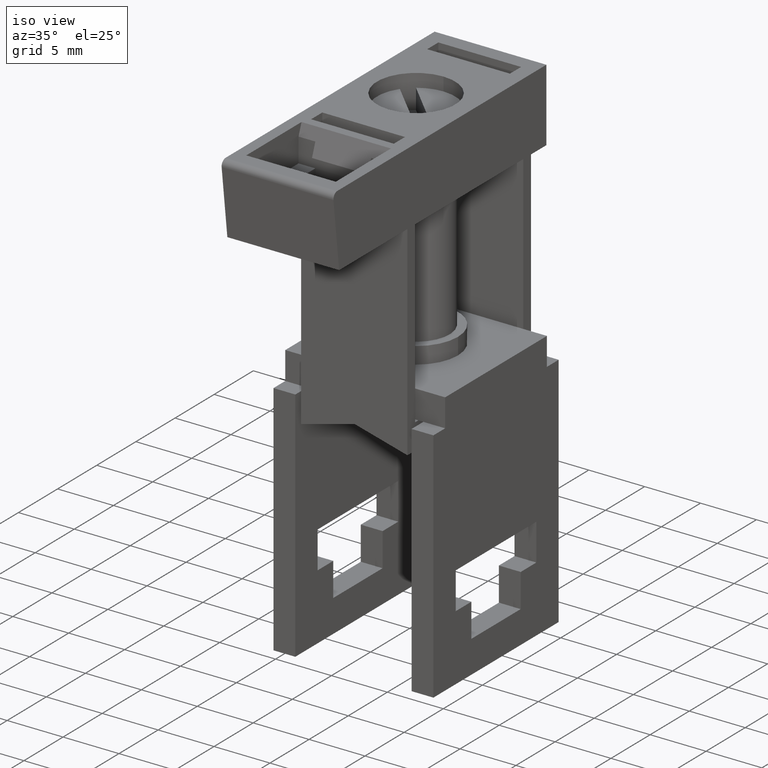
[diagram: clean part render]
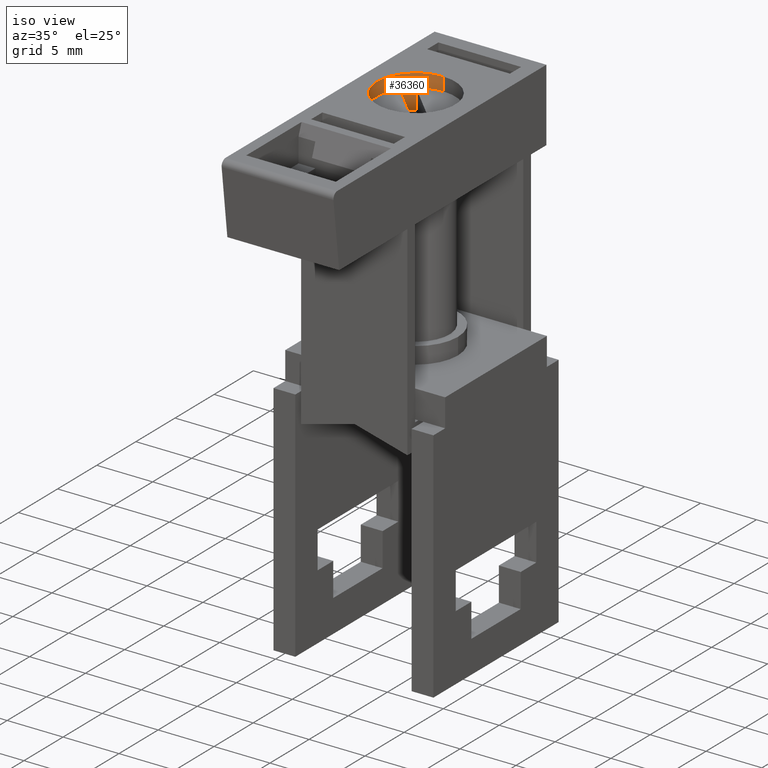
[diagram: same view with one face highlighted and labeled with its STEP entity id]
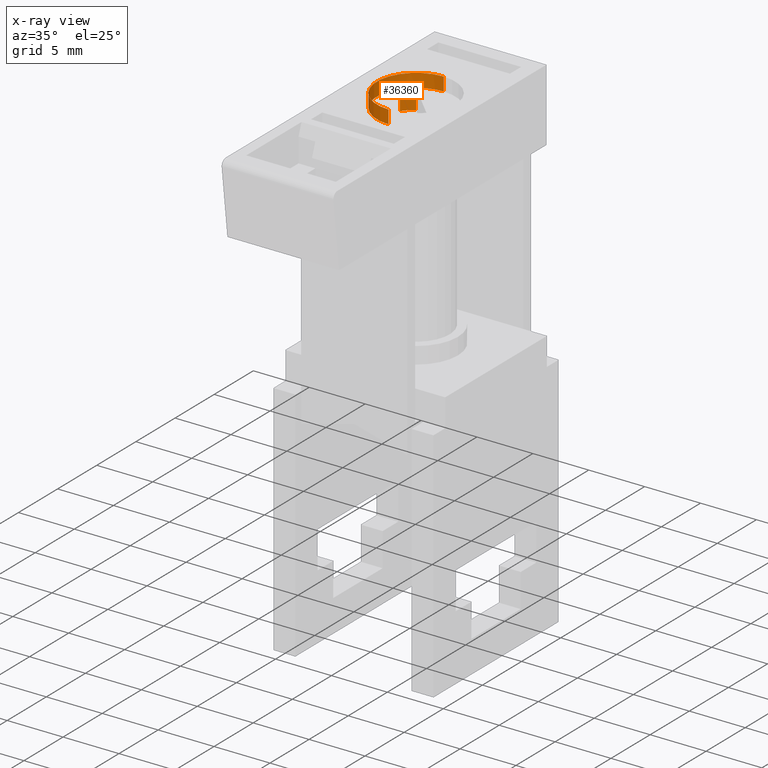
[diagram: x-ray of the same camera — body ghosted, the highlighted face saturated]
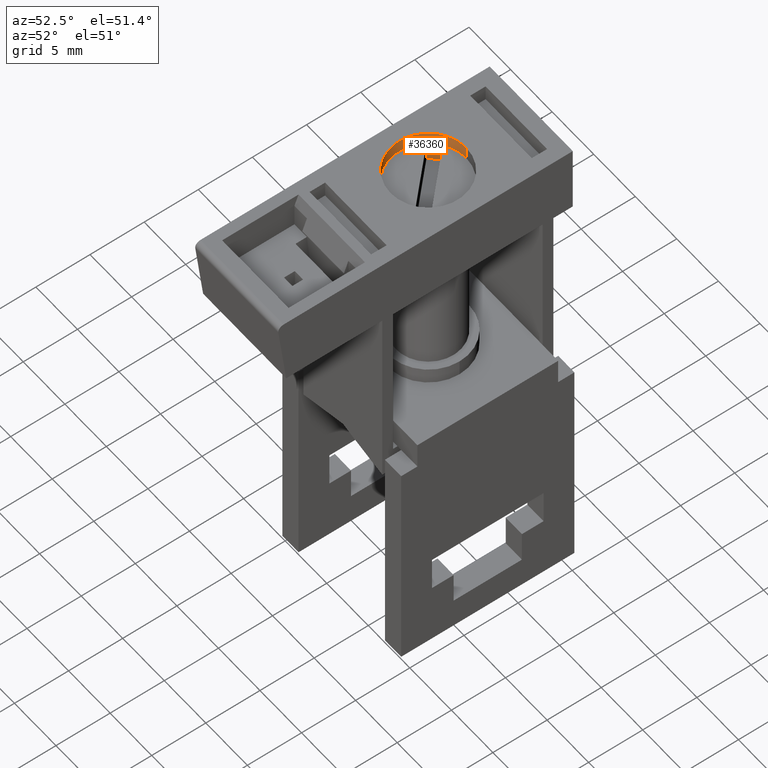
[diagram: same view with one face highlighted and labeled with its STEP entity id]
A machine part, iso view. The second image highlights one B-rep face of the part: STEP entity #36360.
The next image is the same camera in x-ray: the body ghosted, the highlighted face saturated — about 0% of this face is hidden behind the body in this view.
A second angle (auxiliary view) of the same face is appended — the face is thin or edge-on in the first view.
In plain terms, the highlighted cylindrical surface (partial cylindrical patch) has radius 3.5 mm, axis along (0, 0, 1).
Its self-contained STEP definition (entity closure, byte-faithful):
#28870=CARTESIAN_POINT('',(-26.7056108469937,18.7,-3.5527136788005E-15))
;
#28880=DIRECTION('',(-4.93038065763132E-32,-1.,1.23259516440783E-32));
#28890=DIRECTION('',(2.62457961965826E-32,-1.23259516440783E-32,-1.));
#28900=AXIS2_PLACEMENT_3D('',#28870,#28880,#28890);
#28910=CIRCLE('',#28900,3.5);
#28920=CARTESIAN_POINT('',(-26.7056108469937,18.7,3.5));
#28930=VERTEX_POINT('',#28920);
#28940=CARTESIAN_POINT('',(-26.7056108469937,18.7,-3.5));
#28950=VERTEX_POINT('',#28940);
#28960=EDGE_CURVE('',#28930,#28950,#28910,.T.);
#32730=CARTESIAN_POINT('',(-26.7056108469937,17.5,-3.5527136788005E-15))
;
#32740=DIRECTION('',(4.93038065763132E-32,1.,-1.23259516440783E-32));
#32750=DIRECTION('',(-2.62457961965826E-32,1.23259516440783E-32,1.));
#32760=AXIS2_PLACEMENT_3D('',#32730,#32740,#32750);
#32770=CIRCLE('',#32760,3.5);
#32780=CARTESIAN_POINT('',(-26.7056108469937,17.5,-3.5));
#32790=VERTEX_POINT('',#32780);
#32820=CARTESIAN_POINT('',(-26.7056108469937,17.95,-3.5));
#32830=DIRECTION('',(4.93038065763132E-32,1.,-1.23259516440783E-32));
#32840=VECTOR('',#32830,1.);
#32850=LINE('',#32820,#32840);
#32860=EDGE_CURVE('',#32790,#28950,#32850,.T.);
#32890=CARTESIAN_POINT('',(-26.7056108469937,17.95,3.5));
#32900=DIRECTION('',(4.93038065763132E-32,1.,-1.23259516440783E-32));
#32910=VECTOR('',#32900,1.);
#32920=LINE('',#32890,#32910);
#32930=CARTESIAN_POINT('',(-26.7056108469937,17.5,3.5));
#32940=VERTEX_POINT('',#32930);
#32950=EDGE_CURVE('',#32940,#28930,#32920,.T.);
#33150=CARTESIAN_POINT('',(-29.568111983753,17.5,-2.0139729993354));
#33160=VERTEX_POINT('',#33150);
#33170=EDGE_CURVE('',#33160,#32940,#32770,.T.);
#33420=CARTESIAN_POINT('',(-29.568111983753,17.5,-2.0139729993354));
#33430=DIRECTION('',(0.,-1.,1.23259516440783E-32));
#33440=VECTOR('',#33430,1.);
#33450=LINE('',#33420,#33440);
#33460=CARTESIAN_POINT('',(-29.568111983753,15.7,-2.0139729993354));
#33470=VERTEX_POINT('',#33460);
#33480=EDGE_CURVE('',#33160,#33470,#33450,.T.);
#33710=CARTESIAN_POINT('',(-26.7056108469937,15.7,-3.5527136788005E-15))
;
#33720=DIRECTION('',(0.,-1.,1.23259516440783E-32));
#33730=DIRECTION('',(-0.707106781186548,-8.71576399210525E-33,
-0.707106781186547));
#33740=AXIS2_PLACEMENT_3D('',#33710,#33720,#33730);
#33750=CIRCLE('',#33740,3.5);
#33760=CARTESIAN_POINT('',(-28.7195838463291,15.7,-2.86250113675926));
#33770=VERTEX_POINT('',#33760);
#33780=EDGE_CURVE('',#33470,#33770,#33750,.T.);
#34030=CARTESIAN_POINT('',(-28.7195838463291,17.5,-2.86250113675925));
#34040=DIRECTION('',(0.,-1.,1.23259516440783E-32));
#34050=VECTOR('',#34040,1.);
#34060=LINE('',#34030,#34050);
#34070=CARTESIAN_POINT('',(-28.7195838463291,17.5,-2.86250113675926));
#34080=VERTEX_POINT('',#34070);
#34090=EDGE_CURVE('',#34080,#33770,#34060,.T.);
#34290=EDGE_CURVE('',#32790,#34080,#32770,.T.);
#36210=CARTESIAN_POINT('',(-26.7056108469937,17.95,-3.5527136788005E-15)
);
#36220=DIRECTION('',(4.93038065763132E-32,1.,-1.23259516440783E-32));
#36230=DIRECTION('',(-2.62457961965826E-32,1.23259516440783E-32,1.));
#36240=AXIS2_PLACEMENT_3D('',#36210,#36220,#36230);
#36250=CYLINDRICAL_SURFACE('',#36240,3.5);
#36260=ORIENTED_EDGE('',*,*,#28960,.F.);
#36270=ORIENTED_EDGE('',*,*,#32860,.T.);
#36280=ORIENTED_EDGE('',*,*,#34290,.F.);
#36290=ORIENTED_EDGE('',*,*,#34090,.F.);
#36300=ORIENTED_EDGE('',*,*,#33780,.T.);
#36310=ORIENTED_EDGE('',*,*,#33480,.T.);
#36320=ORIENTED_EDGE('',*,*,#33170,.F.);
#36330=ORIENTED_EDGE('',*,*,#32950,.F.);
#36340=EDGE_LOOP('',(#36330,#36320,#36310,#36300,#36290,#36280,#36270,
#36260));
#36350=FACE_OUTER_BOUND('',#36340,.T.);
#36360=ADVANCED_FACE('',(#36350),#36250,.F.);